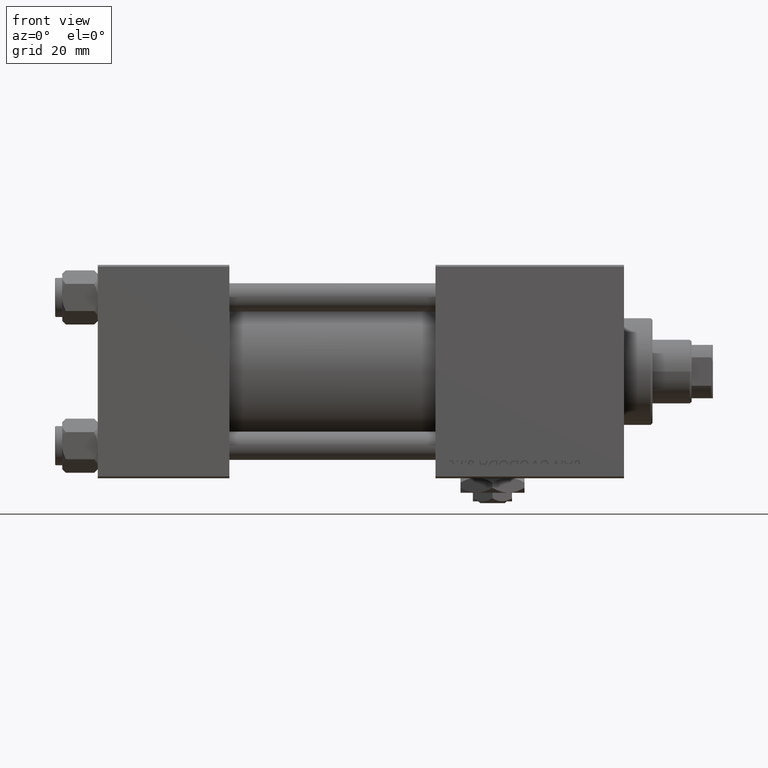
[diagram: clean part render]
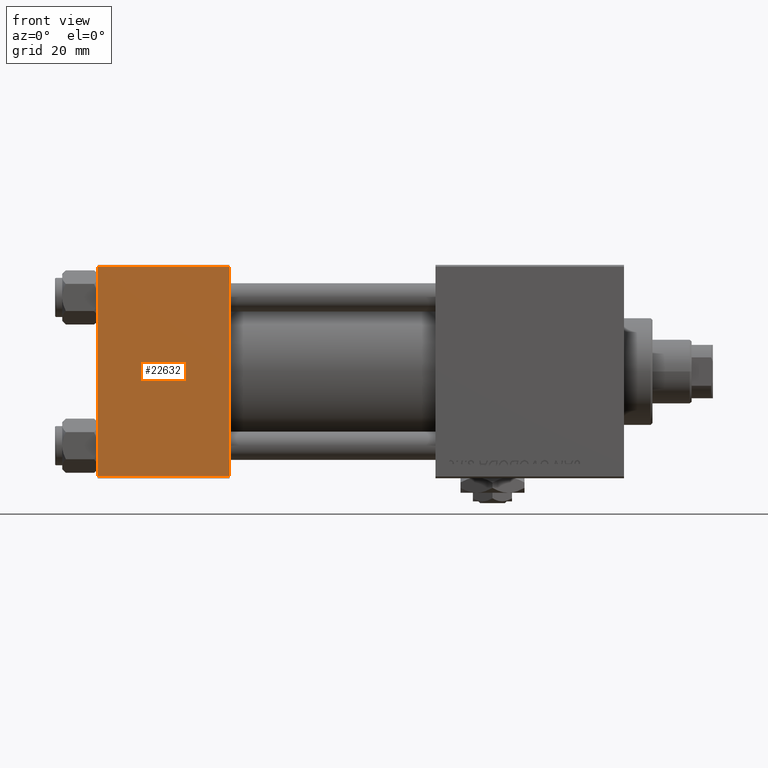
[diagram: same view with one face highlighted and labeled with its STEP entity id]
A machine part, front view. The second image highlights one B-rep face of the part: STEP entity #22632.
In plain terms, the highlighted planar face has unit normal (0, 1, 0).
Its self-contained STEP definition (entity closure, byte-faithful):
#2714 = DIRECTION ( 'NONE',  ( 1.000000000000000000, 0.000000000000000000, 0.000000000000000000 ) ) ;
#3511 = CARTESIAN_POINT ( 'NONE',  ( 0.000000000000000000, -30.00000000000000000, 29.49999999999999289 ) ) ;
#6894 = DIRECTION ( 'NONE',  ( -1.000000000000000000, 0.000000000000000000, 0.000000000000000000 ) ) ;
#9514 = EDGE_CURVE ( 'NONE', #15512, #49978, #27306, .T. ) ;
#13118 = VECTOR ( 'NONE', #6894, 1000.000000000000000 ) ;
#13741 = CARTESIAN_POINT ( 'NONE',  ( 37.00000000000000000, -30.00000000000000000, 29.99999999999999289 ) ) ;
#15140 = VECTOR ( 'NONE', #16928, 1000.000000000000000 ) ;
#15512 = VERTEX_POINT ( 'NONE', #3511 ) ;
#16019 = DIRECTION ( 'NONE',  ( 0.000000000000000000, 0.000000000000000000, -1.000000000000000000 ) ) ;
#16928 = DIRECTION ( 'NONE',  ( 0.000000000000000000, 0.000000000000000000, -1.000000000000000000 ) ) ;
#18405 = EDGE_LOOP ( 'NONE', ( #36333, #49305, #40330, #23973 ) ) ;
#20330 = EDGE_CURVE ( 'NONE', #49978, #29201, #49280, .T. ) ;
#20851 = CARTESIAN_POINT ( 'NONE',  ( 37.00000000000000000, -30.00000000000000000, 29.99999999999999289 ) ) ;
#22389 = LINE ( 'NONE', #38892, #13118 ) ;
#22631 = DIRECTION ( 'NONE',  ( 0.000000000000000000, -0.000000000000000000, 1.000000000000000000 ) ) ;
#22632 = ADVANCED_FACE ( 'NONE', ( #46014 ), #50221, .F. ) ;
#23973 = ORIENTED_EDGE ( 'NONE', *, *, #24598, .T. ) ;
#24598 = EDGE_CURVE ( 'NONE', #47374, #15512, #22389, .T. ) ;
#24797 = LINE ( 'NONE', #20851, #15140 ) ;
#27306 = LINE ( 'NONE', #43312, #39770 ) ;
#29201 = VERTEX_POINT ( 'NONE', #39713 ) ;
#30674 = CARTESIAN_POINT ( 'NONE',  ( 0.000000000000000000, -30.00000000000000000, -29.50000000000001776 ) ) ;
#36333 = ORIENTED_EDGE ( 'NONE', *, *, #9514, .T. ) ;
#38881 = DIRECTION ( 'NONE',  ( -0.000000000000000000, 1.000000000000000000, 0.000000000000000000 ) ) ;
#38892 = CARTESIAN_POINT ( 'NONE',  ( 37.00000000000000000, -30.00000000000000000, 29.49999999999999289 ) ) ;
#39713 = CARTESIAN_POINT ( 'NONE',  ( 37.00000000000000000, -30.00000000000000000, -29.50000000000001776 ) ) ;
#39770 = VECTOR ( 'NONE', #16019, 1000.000000000000000 ) ;
#40330 = ORIENTED_EDGE ( 'NONE', *, *, #50619, .F. ) ;
#41116 = CARTESIAN_POINT ( 'NONE',  ( 37.00000000000000000, -30.00000000000000000, -29.50000000000001776 ) ) ;
#41330 = CARTESIAN_POINT ( 'NONE',  ( 37.00000000000000000, -30.00000000000000000, 29.49999999999999289 ) ) ;
#43312 = CARTESIAN_POINT ( 'NONE',  ( 0.000000000000000000, -30.00000000000000000, 29.99999999999999289 ) ) ;
#46014 = FACE_OUTER_BOUND ( 'NONE', #18405, .T. ) ;
#47374 = VERTEX_POINT ( 'NONE', #41330 ) ;
#48300 = VECTOR ( 'NONE', #2714, 1000.000000000000000 ) ;
#49280 = LINE ( 'NONE', #41116, #48300 ) ;
#49305 = ORIENTED_EDGE ( 'NONE', *, *, #20330, .T. ) ;
#49978 = VERTEX_POINT ( 'NONE', #30674 ) ;
#50221 = PLANE ( 'NONE',  #50884 ) ;
#50619 = EDGE_CURVE ( 'NONE', #47374, #29201, #24797, .T. ) ;
#50884 = AXIS2_PLACEMENT_3D ( 'NONE', #13741, #38881, #22631 ) ;